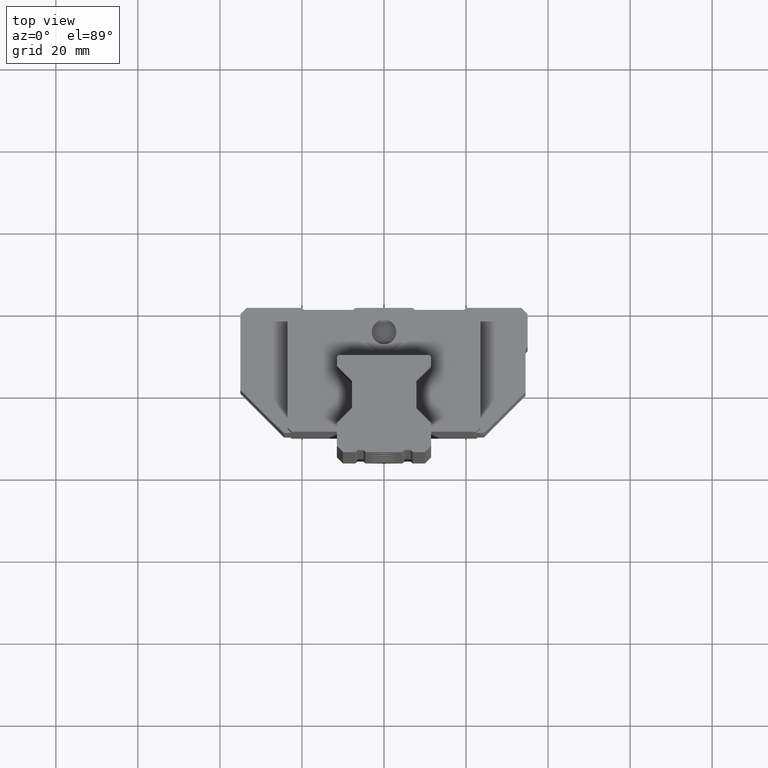
[diagram: clean part render]
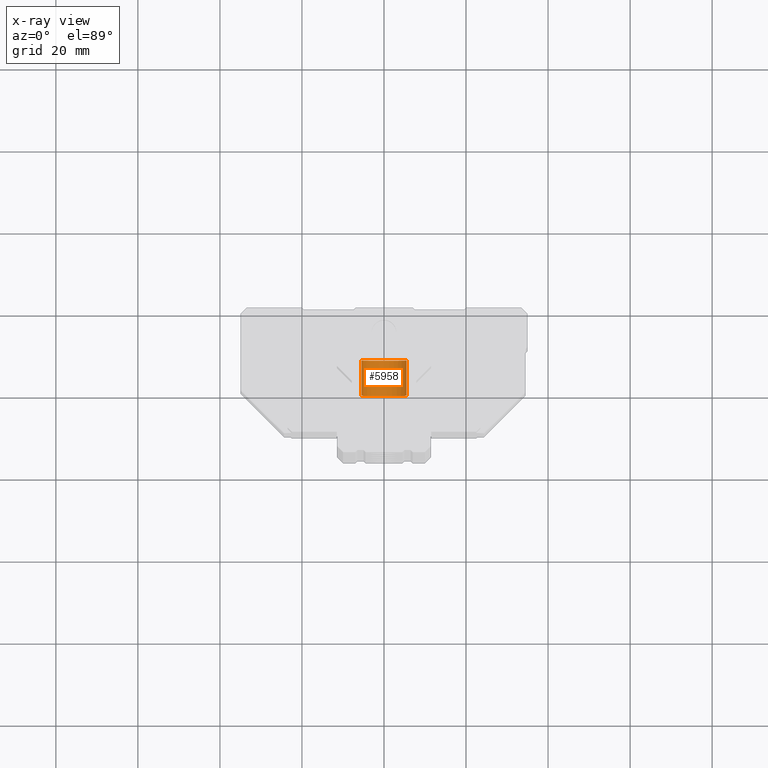
[diagram: x-ray — body ghosted, one internal face saturated and labeled with its STEP entity id]
A machine part, top view, then the same camera in x-ray: the body is ghosted and one INTERNAL B-rep face — a face not visible from any outside direction — is saturated and labeled: STEP entity #5958.
In plain terms, the highlighted cylindrical surface (edge-blend (fillet) strip) has radius 5.5 mm, axis along (0, 1, 0).
Its self-contained STEP definition (entity closure, byte-faithful):
#4812=CARTESIAN_POINT('',(-6.679848932677E-12,-2.139996948242E1,3.E1));
#4813=DIRECTION('',(-3.121429186226E-13,-1.E0,0.E0));
#4814=DIRECTION('',(-1.E0,3.119928557928E-13,0.E0));
#4815=AXIS2_PLACEMENT_3D('',#4812,#4813,#4814);
#4832=DIRECTION('',(7.895471292244E-6,-9.999999999688E-1,-5.370380192225E-9));
#4833=VECTOR('',#4832,8.600153675417E0);
#4834=CARTESIAN_POINT('',(5.499932097727E0,-1.279981580727E1,3.000000004619E1));
#4835=LINE('',#4834,#4833);
#4840=CARTESIAN_POINT('',(-3.999480135932E-12,-1.279981580727E1,3.E1));
#4841=DIRECTION('',(3.121429186226E-13,1.E0,0.E0));
#4842=DIRECTION('',(1.E0,-3.120005596277E-13,0.E0));
#4843=AXIS2_PLACEMENT_3D('',#4840,#4841,#4842);
#4845=CARTESIAN_POINT('',(-3.999480135932E-12,-1.279981580727E1,3.E1));
#4846=DIRECTION('',(3.121429186226E-13,1.E0,0.E0));
#4847=DIRECTION('',(0.E0,0.E0,-1.E0));
#4848=AXIS2_PLACEMENT_3D('',#4845,#4846,#4847);
#4864=DIRECTION('',(-7.895471916746E-6,-9.999999999688E-1,4.805404710202E-9));
#4865=VECTOR('',#4864,8.600153675417E0);
#4866=CARTESIAN_POINT('',(-5.499932097735E0,-1.279981580727E1,
2.999999990609E1));
#4867=LINE('',#4866,#4865);
#5240=CARTESIAN_POINT('',(-5.500000000007E0,-2.139996948242E1,3.E1));
#5241=CARTESIAN_POINT('',(5.499999999993E0,-2.139996948242E1,3.E1));
#5242=VERTEX_POINT('',#5240);
#5243=VERTEX_POINT('',#5241);
#5244=CARTESIAN_POINT('',(-3.999920067612E-12,-1.279981580727E1,
2.450013580454E1));
#5245=CARTESIAN_POINT('',(-5.499864195466E0,-1.279981580727E1,
2.999999992113E1));
#5246=VERTEX_POINT('',#5244);
#5247=VERTEX_POINT('',#5245);
#5248=CARTESIAN_POINT('',(5.499864195458E0,-1.279981580727E1,3.E1));
#5249=VERTEX_POINT('',#5248);
#5942=CARTESIAN_POINT('',(-3.870562665074E-12,-1.239996948242E1,3.E1));
#5943=DIRECTION('',(3.121429186226E-13,1.E0,0.E0));
#5944=DIRECTION('',(1.E0,-3.121429186226E-13,0.E0));
#5945=AXIS2_PLACEMENT_3D('',#5942,#5943,#5944);
#5946=CYLINDRICAL_SURFACE('',#5945,5.5E0);
#5948=ORIENTED_EDGE('',*,*,#5947,.F.);
#5950=ORIENTED_EDGE('',*,*,#5949,.F.);
#5952=ORIENTED_EDGE('',*,*,#5951,.T.);
#5953=ORIENTED_EDGE('',*,*,#5930,.F.);
#5955=ORIENTED_EDGE('',*,*,#5954,.F.);
#5956=EDGE_LOOP('',(#5948,#5950,#5952,#5953,#5955));
#5957=FACE_OUTER_BOUND('',#5956,.F.);
#5958=ADVANCED_FACE('',(#5957),#5946,.F.);
#4816=CIRCLE('',#4815,5.5E0);
#4844=CIRCLE('',#4843,5.499864195462E0);
#4849=CIRCLE('',#4848,5.499864195462E0);
#5930=EDGE_CURVE('',#5242,#5243,#4816,.T.);
#5947=EDGE_CURVE('',#5246,#5247,#4849,.T.);
#5949=EDGE_CURVE('',#5249,#5246,#4844,.T.);
#5951=EDGE_CURVE('',#5249,#5243,#4835,.T.);
#5954=EDGE_CURVE('',#5247,#5242,#4867,.T.);